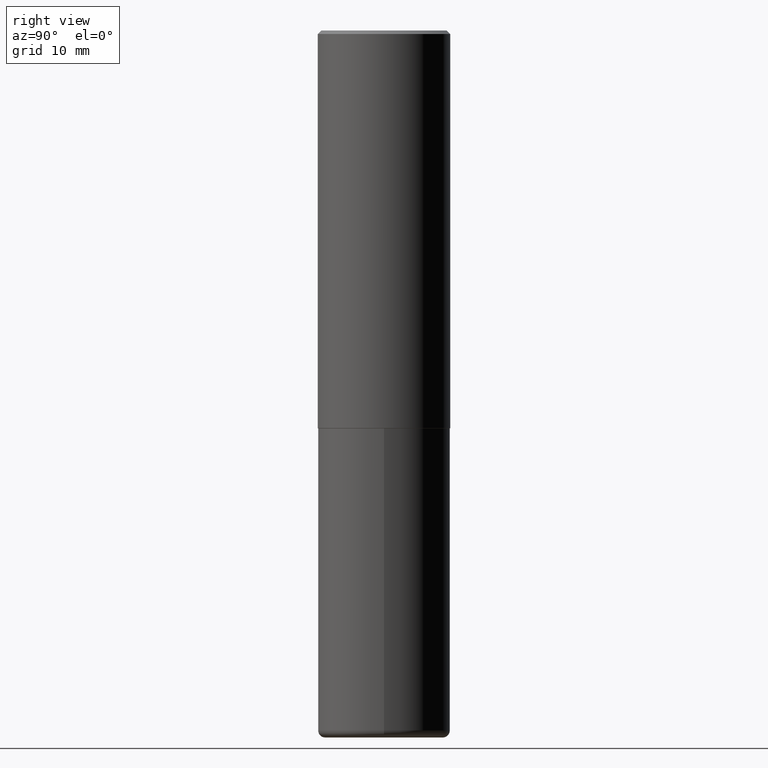
[diagram: clean part render]
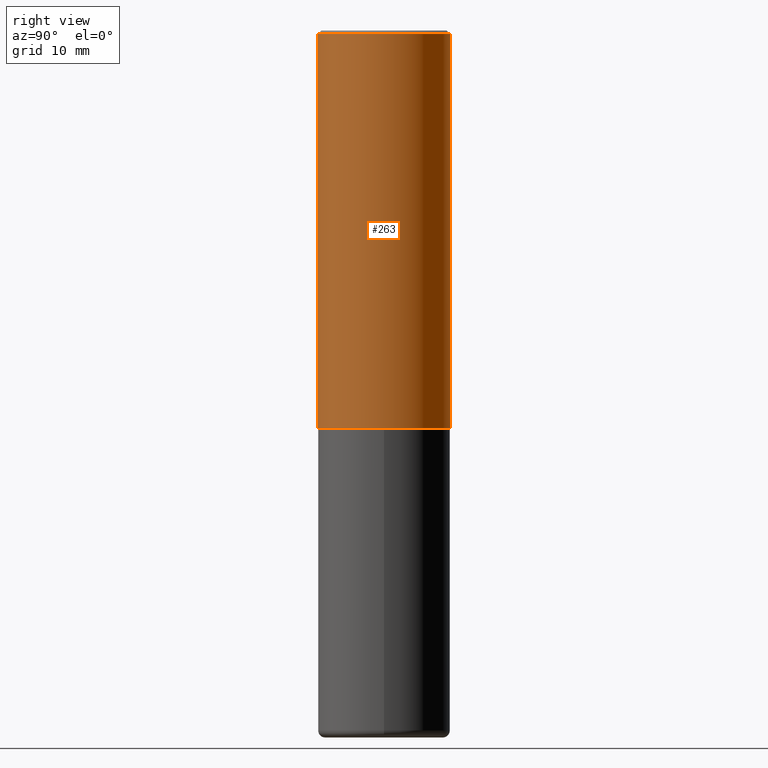
[diagram: same view with one face highlighted and labeled with its STEP entity id]
A machine part, right view. The second image highlights one B-rep face of the part: STEP entity #263.
In plain terms, the highlighted cylindrical surface (partial cylindrical patch) has radius 9.525 mm, axis along (-0, 0, 1).
Its self-contained STEP definition (entity closure, byte-faithful):
#33 = VERTEX_POINT ( 'NONE', #258 ) ;
#38 = EDGE_LOOP ( 'NONE', ( #384, #58, #316, #378 ) ) ;
#49 = CARTESIAN_POINT ( 'NONE',  ( -2.618611004132297163E-15, -0.3750000000000081601, -2.248999999999998334 ) ) ;
#58 = ORIENTED_EDGE ( 'NONE', *, *, #69, .T. ) ;
#64 = LINE ( 'NONE', #358, #200 ) ;
#69 = EDGE_CURVE ( 'NONE', #33, #418, #64, .T. ) ;
#74 = DIRECTION ( 'NONE',  ( -6.982962677686266711E-15, -1.000000000000000000, 3.642463991552348591E-15 ) ) ;
#98 = DIRECTION ( 'NONE',  ( -2.444556732061531349E-29, 3.492787480900183539E-15, 1.000000000000000000 ) ) ;
#102 = CARTESIAN_POINT ( 'NONE',  ( -2.618611004132351200E-15, -0.3750000000000001665, 1.309795305337569517E-15 ) ) ;
#117 = CIRCLE ( 'NONE', #356, 0.3750000000000000555 ) ;
#119 = CARTESIAN_POINT ( 'NONE',  ( -2.572686749164323547E-15, -0.3750000000000001110, -0.01999999999999877570 ) ) ;
#135 = LINE ( 'NONE', #102, #296 ) ;
#172 = DIRECTION ( 'NONE',  ( -2.444556732061531349E-29, 3.492787480900183539E-15, 1.000000000000000000 ) ) ;
#181 = DIRECTION ( 'NONE',  ( -2.444556732061531349E-29, 3.492787480900183539E-15, 1.000000000000000000 ) ) ;
#183 = AXIS2_PLACEMENT_3D ( 'NONE', #241, #172, #74 ) ;
#189 = VERTEX_POINT ( 'NONE', #49 ) ;
#200 = VECTOR ( 'NONE', #98, 39.37007874015748143 ) ;
#204 = CARTESIAN_POINT ( 'NONE',  ( 2.618611004132350411E-15, 0.3749999999999999445, -0.02000000000000139513 ) ) ;
#205 = DIRECTION ( 'NONE',  ( -2.444556732061531349E-29, 3.492787480900183539E-15, 1.000000000000000000 ) ) ;
#218 = EDGE_CURVE ( 'NONE', #189, #33, #340, .T. ) ;
#235 = CYLINDRICAL_SURFACE ( 'NONE', #382, 0.3750000000000001665 ) ;
#241 = CARTESIAN_POINT ( 'NONE',  ( 5.497808090406382563E-29, -7.855279044544511212E-15, -2.248999999999999666 ) ) ;
#250 = CARTESIAN_POINT ( 'NONE',  ( 4.889113464123083543E-31, -6.985574961800397105E-17, -0.02000000000000008715 ) ) ;
#253 = DIRECTION ( 'NONE',  ( -2.444556732061531349E-29, 3.492787480900183539E-15, 1.000000000000000000 ) ) ;
#254 = EDGE_CURVE ( 'NONE', #189, #308, #135, .T. ) ;
#258 = CARTESIAN_POINT ( 'NONE',  ( 2.664535259100404490E-15, 0.3749999999999924505, -2.249000000000000998 ) ) ;
#263 = ADVANCED_FACE ( 'NONE', ( #367 ), #235, .T. ) ;
#274 = CARTESIAN_POINT ( 'NONE',  ( 0.000000000000000000, 0.000000000000000000, 0.000000000000000000 ) ) ;
#296 = VECTOR ( 'NONE', #181, 39.37007874015748143 ) ;
#308 = VERTEX_POINT ( 'NONE', #119 ) ;
#316 = ORIENTED_EDGE ( 'NONE', *, *, #327, .F. ) ;
#327 = EDGE_CURVE ( 'NONE', #308, #418, #117, .T. ) ;
#340 = CIRCLE ( 'NONE', #183, 0.3750000000000002776 ) ;
#346 = DIRECTION ( 'NONE',  ( -6.982962677686265922E-15, -1.000000000000000000, 3.494488891895536035E-15 ) ) ;
#356 = AXIS2_PLACEMENT_3D ( 'NONE', #250, #253, #346 ) ;
#358 = CARTESIAN_POINT ( 'NONE',  ( 2.664535259100376486E-15, 0.3750000000000001665, -1.309795305337569517E-15 ) ) ;
#365 = DIRECTION ( 'NONE',  ( -6.982962677686266711E-15, -1.000000000000000000, 3.492787480900183934E-15 ) ) ;
#367 = FACE_OUTER_BOUND ( 'NONE', #38, .T. ) ;
#378 = ORIENTED_EDGE ( 'NONE', *, *, #254, .F. ) ;
#382 = AXIS2_PLACEMENT_3D ( 'NONE', #274, #205, #365 ) ;
#384 = ORIENTED_EDGE ( 'NONE', *, *, #218, .T. ) ;
#418 = VERTEX_POINT ( 'NONE', #204 ) ;